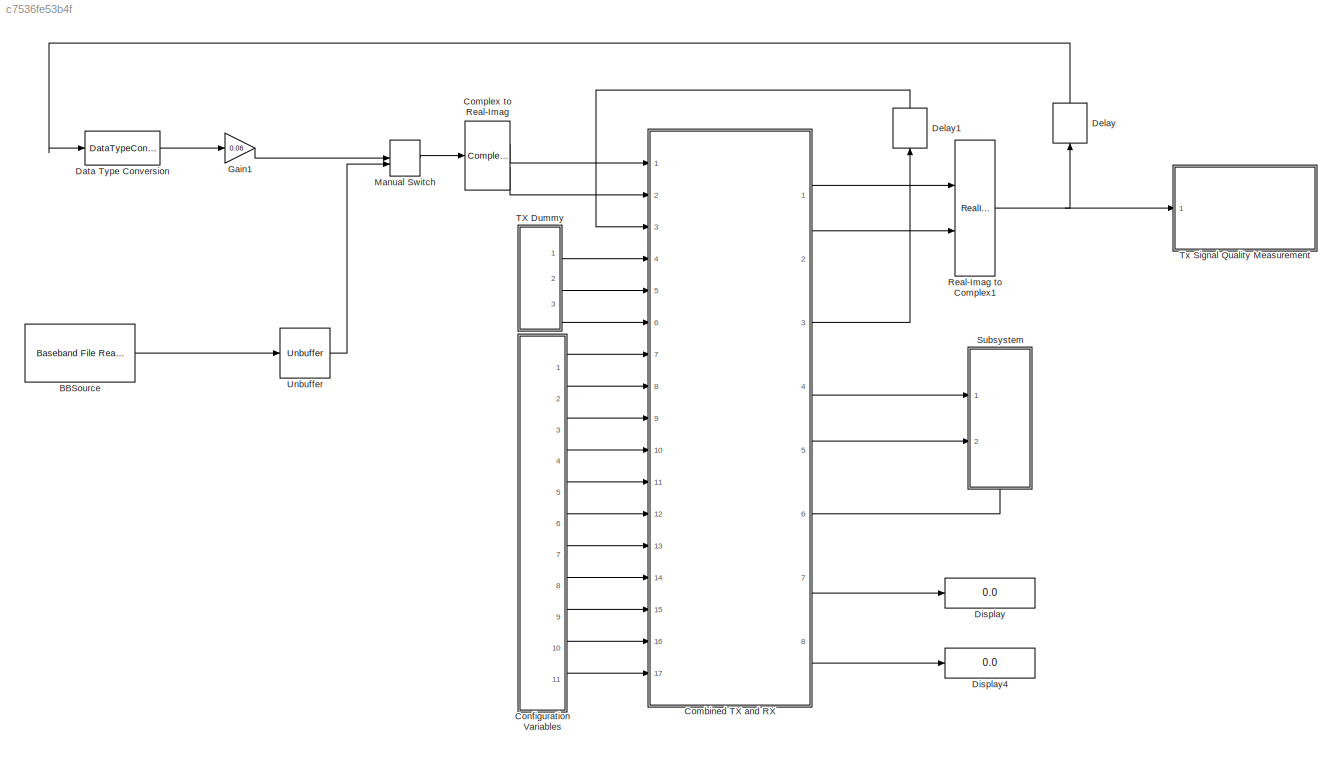
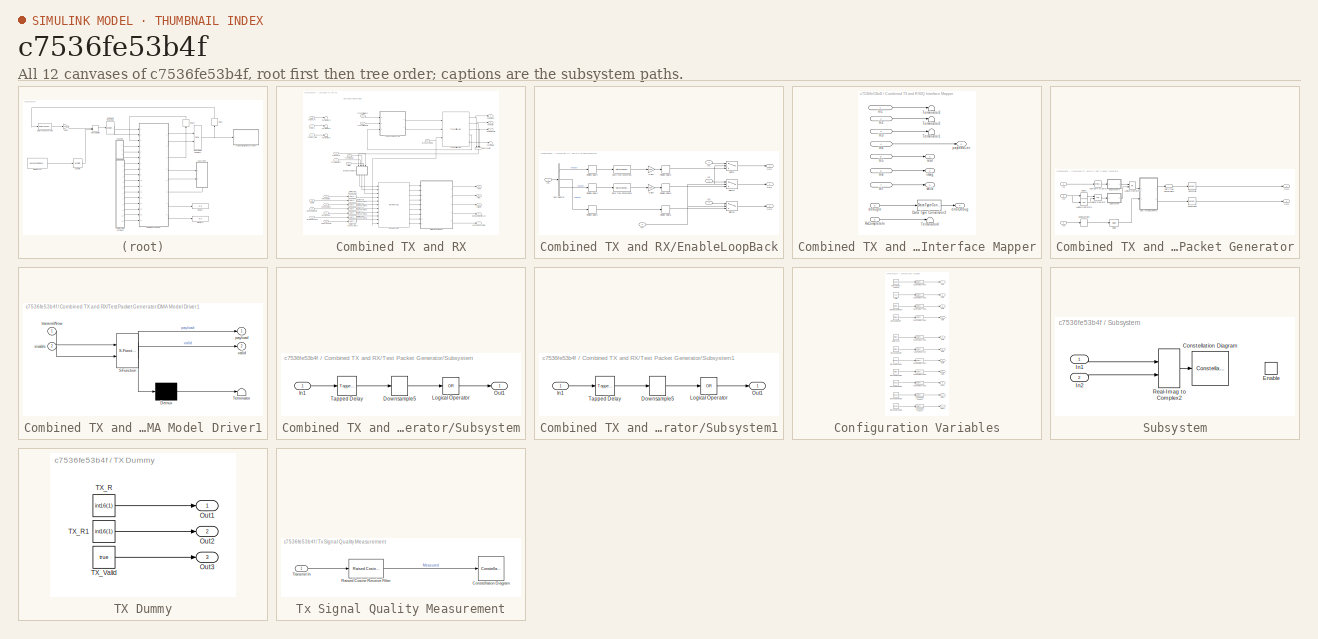
[diagram: thumbnail index - all 12 canvases of the model, root first then tree order]
MODEL slx_c7536fe53b4f
KIND model
CONFIG AbsTol = auto
CONFIG EnableMultiTasking = off
CONFIG FixedStep = auto
CONFIG InitFcn = modelSettings\n
CONFIG MaxStep = auto
CONFIG MinStep = auto
CONFIG RelTol = 1e-3
CONFIG SampleTimeConstraint = Unconstrained
CONFIG Solver = FixedStepDiscrete
CONFIG SolverName = FixedStepDiscrete
CONFIG StartTime = 0.0
CONFIG StopTime = 10.0
BLOCK [Reference] BBSource  REF=commsource2/Baseband File Reader
  Ports = [0, 1]
  SourceBlock = commsource2/Baseband File Reader
  SourceProductBaseCode = CM
  SourceProductName = Communications System Toolbox
  SourceType = Baseband File Reader
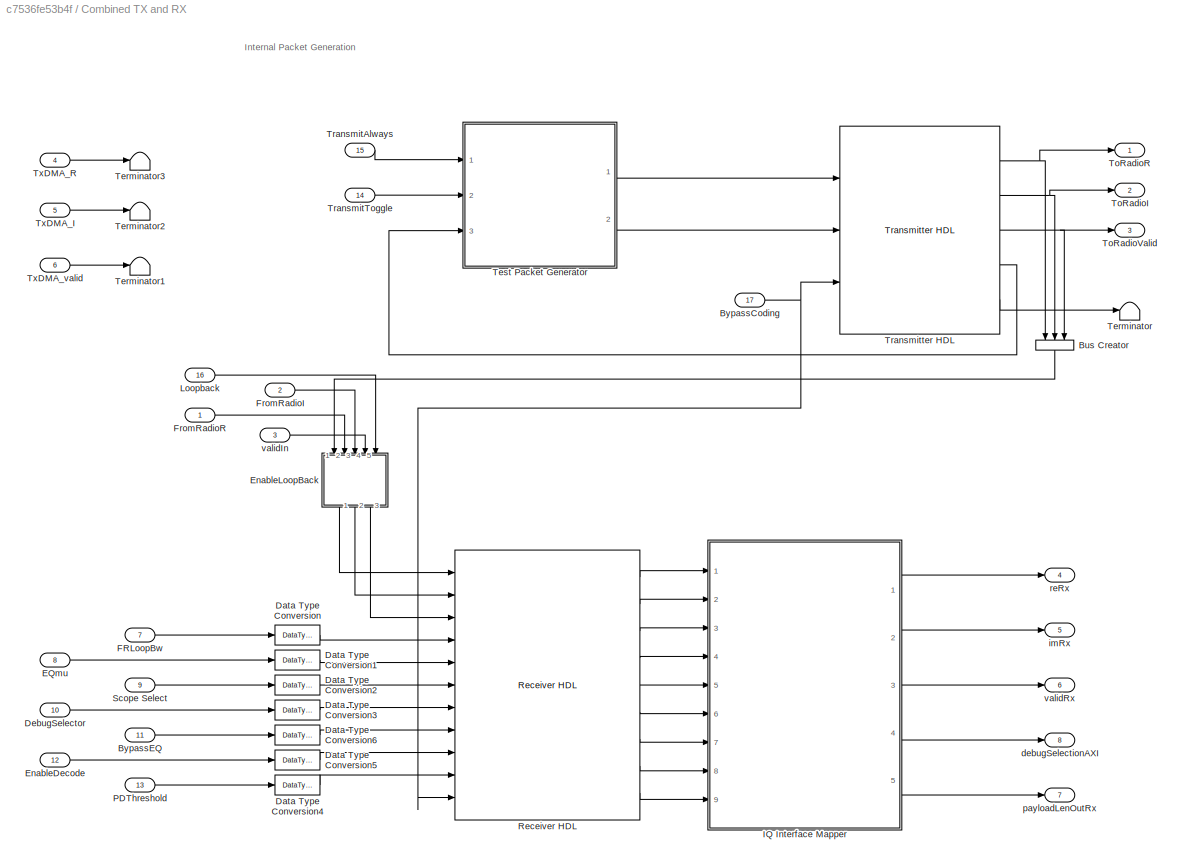
BLOCK [SubSystem] Combined TX and RX
  Ports = [17, 8]
  RequestExecContextInheritance = off
  TreatAsAtomicUnit = on
  Variant = off
BLOCK [BusCreator] Combined TX and RX/Bus Creator
  DisplayOption = bar
  InheritFromInputs = on
  Inputs = 3
  Ports = [3, 1]
BLOCK [Inport] Combined TX and RX/BypassCoding
  IconDisplay = Port number
  Port = 17
BLOCK [Inport] Combined TX and RX/BypassEQ
  IconDisplay = Port number
  Port = 11
BLOCK [DataTypeConversion] Combined TX and RX/Data Type Conversion
  OutDataTypeStr = int16
  RndMeth = Floor
  SaturateOnIntegerOverflow = off
BLOCK [DataTypeConversion] Combined TX and RX/Data Type Conversion1
  OutDataTypeStr = int16
  RndMeth = Floor
  SaturateOnIntegerOverflow = off
BLOCK [DataTypeConversion] Combined TX and RX/Data Type Conversion2
  OutDataTypeStr = int8
  RndMeth = Floor
  SaturateOnIntegerOverflow = off
BLOCK [DataTypeConversion] Combined TX and RX/Data Type Conversion3
  OutDataTypeStr = int8
  RndMeth = Floor
  SaturateOnIntegerOverflow = off
BLOCK [DataTypeConversion] Combined TX and RX/Data Type Conversion4
  OutDataTypeStr = int16
  RndMeth = Floor
  SaturateOnIntegerOverflow = off
BLOCK [DataTypeConversion] Combined TX and RX/Data Type Conversion5
  OutDataTypeStr = int8
  RndMeth = Floor
  SaturateOnIntegerOverflow = off
BLOCK [DataTypeConversion] Combined TX and RX/Data Type Conversion6
  OutDataTypeStr = int8
  RndMeth = Floor
  SaturateOnIntegerOverflow = off
BLOCK [Inport] Combined TX and RX/DebugSelector
  IconDisplay = Port number
  Port = 10
BLOCK [Inport] Combined TX and RX/EQmu
  IconDisplay = Port number
  Port = 8
BLOCK [Inport] Combined TX and RX/EnableDecode
  IconDisplay = Port number
  Port = 12
BLOCK [SubSystem] Combined TX and RX/EnableLoopBack
  Ports = [5, 3]
  RequestExecContextInheritance = off
  Variant = off
BLOCK [BusSelector] Combined TX and RX/EnableLoopBack/Bus Selector
  OutputAsBus = off
  OutputSignals = signal1,signal2,signal3
  Ports = [1, 3]
BLOCK [DataTypeConversion] Combined TX and RX/EnableLoopBack/Data Type Conversion
  ConvertRealWorld = Stored Integer (SI)
  OutDataTypeStr = int16
  RndMeth = Floor
  SaturateOnIntegerOverflow = off
BLOCK [DataTypeConversion] Combined TX and RX/EnableLoopBack/Data Type Conversion1
  ConvertRealWorld = Stored Integer (SI)
  OutDataTypeStr = int16
  RndMeth = Floor
  SaturateOnIntegerOverflow = off
BLOCK [Gain] Combined TX and RX/EnableLoopBack/Gain1
  Gain = 0.06
  OutDataTypeStr = int16
  ParamDataTypeStr = Inherit: Inherit via internal rule
BLOCK [Gain] Combined TX and RX/EnableLoopBack/Gain2
  Gain = 0.06
  OutDataTypeStr = int16
  ParamDataTypeStr = Inherit: Inherit via internal rule
BLOCK [Inport] Combined TX and RX/EnableLoopBack/In1
  IconDisplay = Port number
  Port = 2
BLOCK [Inport] Combined TX and RX/EnableLoopBack/In2
  IconDisplay = Port number
  Port = 3
BLOCK [Inport] Combined TX and RX/EnableLoopBack/In3
  IconDisplay = Port number
  Port = 4
BLOCK [Inport] Combined TX and RX/EnableLoopBack/In4
  IconDisplay = Port number
  Port = 5
BLOCK [Inport] Combined TX and RX/EnableLoopBack/In5
  IconDisplay = Port number
BLOCK [Outport] Combined TX and RX/EnableLoopBack/Out1
  IconDisplay = Port number
BLOCK [Outport] Combined TX and RX/EnableLoopBack/Out2
  IconDisplay = Port number
  Port = 2
BLOCK [Outport] Combined TX and RX/EnableLoopBack/Out3
  IconDisplay = Port number
  Port = 3
BLOCK [Delay] Combined TX and RX/EnableLoopBack/Pipeline Delay1
  DelayLength = 1
  InputPortMap = u0
  Ports = [1, 1]
BLOCK [Delay] Combined TX and RX/EnableLoopBack/Pipeline Delay2
  DelayLength = 1
  InputPortMap = u0
  Ports = [1, 1]
BLOCK [Delay] Combined TX and RX/EnableLoopBack/Pipeline Delay3
  DelayLength = 1
  InputPortMap = u0
  Ports = [1, 1]
BLOCK [Delay] Combined TX and RX/EnableLoopBack/Pipeline Delay4
  DelayLength = 1
  InputPortMap = u0
  Ports = [1, 1]
BLOCK [Delay] Combined TX and RX/EnableLoopBack/Pipeline Delay5
  DelayLength = 1
  InputPortMap = u0
  Ports = [1, 1]
BLOCK [Delay] Combined TX and RX/EnableLoopBack/Pipeline Delay6
  DelayLength = 1
  InputPortMap = u0
  Ports = [1, 1]
BLOCK [Switch] Combined TX and RX/EnableLoopBack/Switch
  Criteria = u2 > Threshold
  InputSameDT = off
  SaturateOnIntegerOverflow = off
BLOCK [Switch] Combined TX and RX/EnableLoopBack/Switch1
  Criteria = u2 > Threshold
  InputSameDT = off
  SaturateOnIntegerOverflow = off
BLOCK [Switch] Combined TX and RX/EnableLoopBack/Switch2
  Criteria = u2 > Threshold
  InputSameDT = off
  SaturateOnIntegerOverflow = off
BLOCK [Inport] Combined TX and RX/FRLoopBw
  IconDisplay = Port number
  Port = 7
BLOCK [Inport] Combined TX and RX/FromRadioI
  IconDisplay = Port number
  Port = 2
BLOCK [Inport] Combined TX and RX/FromRadioR
  IconDisplay = Port number
BLOCK [SubSystem] Combined TX and RX/IQ Interface Mapper
  Ports = [9, 5]
  RequestExecContextInheritance = off
  Variant = off
BLOCK [DataTypeConversion] Combined TX and RX/IQ Interface Mapper/Data Type Conversion3
  OutDataTypeStr = uint32
  RndMeth = Floor
  SaturateOnIntegerOverflow = off
BLOCK [Inport] Combined TX and RX/IQ Interface Mapper/In1
  IconDisplay = Port number and signal name
BLOCK [Inport] Combined TX and RX/IQ Interface Mapper/In2
  IconDisplay = Port number and signal name
  Port = 2
BLOCK [Inport] Combined TX and RX/IQ Interface Mapper/In3
  IconDisplay = Port number and signal name
  Port = 3
BLOCK [Inport] Combined TX and RX/IQ Interface Mapper/In4
  IconDisplay = Port number and signal name
  Port = 4
BLOCK [Inport] Combined TX and RX/IQ Interface Mapper/In5
  IconDisplay = Port number and signal name
  Port = 5
BLOCK [Inport] Combined TX and RX/IQ Interface Mapper/In6
  IconDisplay = Port number and signal name
  Port = 6
BLOCK [Inport] Combined TX and RX/IQ Interface Mapper/In7
  IconDisplay = Port number and signal name
  Port = 7
BLOCK [Inport] Combined TX and RX/IQ Interface Mapper/RxCompleteIn
  IconDisplay = Port number
  Port = 9
BLOCK [Terminator] Combined TX and RX/IQ Interface Mapper/Terminator1
BLOCK [Terminator] Combined TX and RX/IQ Interface Mapper/Terminator2
BLOCK [Terminator] Combined TX and RX/IQ Interface Mapper/Terminator3
BLOCK [Terminator] Combined TX and RX/IQ Interface Mapper/Terminator4
BLOCK [Inport] Combined TX and RX/IQ Interface Mapper/debugIn
  IconDisplay = Port number and signal name
  Port = 8
BLOCK [Outport] Combined TX and RX/IQ Interface Mapper/errorDebug
  IconDisplay = Port number
  Port = 4
BLOCK [Outport] Combined TX and RX/IQ Interface Mapper/imag
  IconDisplay = Port number
  Port = 2
BLOCK [Outport] Combined TX and RX/IQ Interface Mapper/payloadLen
  IconDisplay = Port number
  Port = 5
BLOCK [Outport] Combined TX and RX/IQ Interface Mapper/real
  IconDisplay = Port number
BLOCK [Outport] Combined TX and RX/IQ Interface Mapper/valid
  IconDisplay = Port number
  Port = 3
BLOCK [Inport] Combined TX and RX/Loopback
  IconDisplay = Port number
  Port = 16
BLOCK [Inport] Combined TX and RX/PDThreshold
  IconDisplay = Port number
  Port = 13
BLOCK [Reference] Combined TX and RX/Receiver HDL  REF=RxTxFixedPointLibrary_noscopes/Receiver HDL
  Ports = [11, 9]
  SourceBlock = RxTxFixedPointLibrary_noscopes/Receiver HDL
BLOCK [Inport] Combined TX and RX/Scope Select
  IconDisplay = Port number
  Port = 9
BLOCK [Terminator] Combined TX and RX/Terminator
BLOCK [Terminator] Combined TX and RX/Terminator1
BLOCK [Terminator] Combined TX and RX/Terminator2
BLOCK [Terminator] Combined TX and RX/Terminator3
BLOCK [SubSystem] Combined TX and RX/Test Packet Generator
  Ports = [3, 2]
  RequestExecContextInheritance = off
  Variant = off
BLOCK [Reference] Combined TX and RX/Test Packet Generator/Compare To Zero1  REF=simulink/Logic and Bit
Operations/Compare
To Zero
  Ports = [1, 1]
  SourceBlock = simulink/Logic and Bit\nOperations/Compare\nTo Zero
  SourceProductBaseCode = SL
  SourceProductName = Simulink
  SourceType = Compare To Zero
BLOCK [SubSystem] Combined TX and RX/Test Packet Generator/DMA Model Driver1
  ErrorFcn = Stateflow.Translate.translate
  PermitHierarchicalResolution = ExplicitOnly
  Ports = [2, 2]
  RequestExecContextInheritance = off
  SFBlockType = MATLAB Function
  TreatAsAtomicUnit = on
  Variant = off
BLOCK [Demux] Combined TX and RX/Test Packet Generator/DMA Model Driver1/ Demux 
  Outputs = 1
  Ports = [1, 1]
BLOCK [S-Function] Combined TX and RX/Test Packet Generator/DMA Model Driver1/ SFunction 
  EnableBusSupport = on
  FunctionName = sf_sfun
  PortCounts = [2 3]
  Ports = [2, 3]
  SFcnIsStateOwnerBlock = off
  SFunctionDeploymentMode = off
  Tag = Stateflow S-Function combinedTxRx_ExternalMode 2
BLOCK [Terminator] Combined TX and RX/Test Packet Generator/DMA Model Driver1/ Terminator 
BLOCK [Inport] Combined TX and RX/Test Packet Generator/DMA Model Driver1/enable
  IconDisplay = Port number
  Port = 2
BLOCK [Outport] Combined TX and RX/Test Packet Generator/DMA Model Driver1/payload
  IconDisplay = Port number
BLOCK [Inport] Combined TX and RX/Test Packet Generator/DMA Model Driver1/transmitNow
  IconDisplay = Port number
BLOCK [Outport] Combined TX and RX/Test Packet Generator/DMA Model Driver1/valid
  IconDisplay = Port number
  Port = 2
BLOCK [DataTypeConversion] Combined TX and RX/Test Packet Generator/Data Type Conversion7
  OutDataTypeStr = fixdt(0,64,0)
  RndMeth = Floor
  SaturateOnIntegerOverflow = off
BLOCK [Delay] Combined TX and RX/Test Packet Generator/Delay
  DelayLength = 1
  InputPortMap = u0
  Ports = [1, 1]
BLOCK [Delay] Combined TX and RX/Test Packet Generator/Delay1
  DelayLength = 1
  InputPortMap = u0
  Ports = [1, 1]
BLOCK [DownSample] Combined TX and RX/Test Packet Generator/Downsample1
  InputProcessing = Elements as channels (sample based)
  N = 4
  RateOptions = Allow multirate processing
BLOCK [Inport] Combined TX and RX/Test Packet Generator/In1
  IconDisplay = Port number
BLOCK [Inport] Combined TX and RX/Test Packet Generator/In2
  IconDisplay = Port number
  Port = 2
BLOCK [Inport] Combined TX and RX/Test Packet Generator/In3
  IconDisplay = Port number
  Port = 3
BLOCK [Logic] Combined TX and RX/Test Packet Generator/Logical Operator
  AllPortsSameDT = off
  OutDataTypeStr = boolean
  Ports = [2, 1]
BLOCK [Logic] Combined TX and RX/Test Packet Generator/Logical Operator1
  AllPortsSameDT = off
  Operator = NOT
  OutDataTypeStr = boolean
  Ports = [1, 1]
BLOCK [Logic] Combined TX and RX/Test Packet Generator/Logical Operator2
  AllPortsSameDT = off
  Operator = OR
  OutDataTypeStr = boolean
  Ports = [2, 1]
BLOCK [Outport] Combined TX and RX/Test Packet Generator/Out1
  IconDisplay = Port number
BLOCK [Outport] Combined TX and RX/Test Packet Generator/Out2
  IconDisplay = Port number
  Port = 2
BLOCK [SubSystem] Combined TX and RX/Test Packet Generator/Subsystem
  Ports = [1, 1]
  RequestExecContextInheritance = off
  Variant = off
BLOCK [DownSample] Combined TX and RX/Test Packet Generator/Subsystem/Downsample5
  InputProcessing = Elements as channels (sample based)
  N = 4
  RateOptions = Allow multirate processing
BLOCK [Inport] Combined TX and RX/Test Packet Generator/Subsystem/In1
  IconDisplay = Port number
BLOCK [Logic] Combined TX and RX/Test Packet Generator/Subsystem/Logical Operator
  AllPortsSameDT = off
  Inputs = 1
  Operator = OR
  OutDataTypeStr = boolean
  Ports = [1, 1]
BLOCK [Outport] Combined TX and RX/Test Packet Generator/Subsystem/Out1
  IconDisplay = Port number
BLOCK [Reference] Combined TX and RX/Test Packet Generator/Subsystem/Tapped Delay  REF=simulink/Discrete/Tapped Delay
  Ports = [1, 1]
  SourceBlock = simulink/Discrete/Tapped Delay
  SourceProductBaseCode = SL
  SourceProductName = Simulink
  SourceType = Tapped Delay Line
BLOCK [SubSystem] Combined TX and RX/Test Packet Generator/Subsystem1
  Ports = [1, 1]
  RequestExecContextInheritance = off
  Variant = off
BLOCK [DownSample] Combined TX and RX/Test Packet Generator/Subsystem1/Downsample5
  InputProcessing = Elements as channels (sample based)
  N = 4
  RateOptions = Allow multirate processing
BLOCK [Inport] Combined TX and RX/Test Packet Generator/Subsystem1/In1
  IconDisplay = Port number
BLOCK [Logic] Combined TX and RX/Test Packet Generator/Subsystem1/Logical Operator
  AllPortsSameDT = off
  Inputs = 1
  Operator = OR
  OutDataTypeStr = boolean
  Ports = [1, 1]
BLOCK [Outport] Combined TX and RX/Test Packet Generator/Subsystem1/Out1
  IconDisplay = Port number
BLOCK [Reference] Combined TX and RX/Test Packet Generator/Subsystem1/Tapped Delay  REF=simulink/Discrete/Tapped Delay
  Ports = [1, 1]
  SourceBlock = simulink/Discrete/Tapped Delay
  SourceProductBaseCode = SL
  SourceProductName = Simulink
  SourceType = Tapped Delay Line
BLOCK [Reference] Combined TX and RX/Test Packet Generator/Upsample  REF=dspsigops/Upsample
  Ports = [1, 1]
  SourceBlock = dspsigops/Upsample
  SourceProductBaseCode = DS
  SourceProductName = DSP System Toolbox
  SourceType = Upsample
  UserDataPersistent = on
BLOCK [Reference] Combined TX and RX/Test Packet Generator/Upsample1  REF=dspsigops/Upsample
  Ports = [1, 1]
  SourceBlock = dspsigops/Upsample
  SourceProductBaseCode = DS
  SourceProductName = DSP System Toolbox
  SourceType = Upsample
  UserDataPersistent = on
BLOCK [Outport] Combined TX and RX/ToRadioI
  IconDisplay = Port number
  Port = 2
BLOCK [Outport] Combined TX and RX/ToRadioR
  IconDisplay = Port number
BLOCK [Outport] Combined TX and RX/ToRadioValid
  IconDisplay = Port number
  Port = 3
BLOCK [Inport] Combined TX and RX/TransmitAlways
  IconDisplay = Port number
  Port = 15
BLOCK [Inport] Combined TX and RX/TransmitToggle
  IconDisplay = Port number
  Port = 14
BLOCK [Reference] Combined TX and RX/Transmitter HDL  REF=RxTxFixedPointLibrary_noscopes/Transmitter HDL
  Ports = [3, 5]
  SourceBlock = RxTxFixedPointLibrary_noscopes/Transmitter HDL
BLOCK [Inport] Combined TX and RX/TxDMA_I
  IconDisplay = Port number
  Port = 5
BLOCK [Inport] Combined TX and RX/TxDMA_R
  IconDisplay = Port number
  Port = 4
BLOCK [Inport] Combined TX and RX/TxDMA_valid
  IconDisplay = Port number
  Port = 6
BLOCK [Outport] Combined TX and RX/debugSelectionAXI
  IconDisplay = Port number
  Port = 8
BLOCK [Outport] Combined TX and RX/imRx
  IconDisplay = Port number
  Port = 5
BLOCK [Outport] Combined TX and RX/payloadLenOutRx
  IconDisplay = Port number
  Port = 7
BLOCK [Outport] Combined TX and RX/reRx
  IconDisplay = Port number
  Port = 4
BLOCK [Inport] Combined TX and RX/validIn
  IconDisplay = Port number
  Port = 3
BLOCK [Outport] Combined TX and RX/validRx
  IconDisplay = Port number
  Port = 6
BLOCK [ComplexToRealImag] Complex to Real-Imag
  Ports = [1, 2]
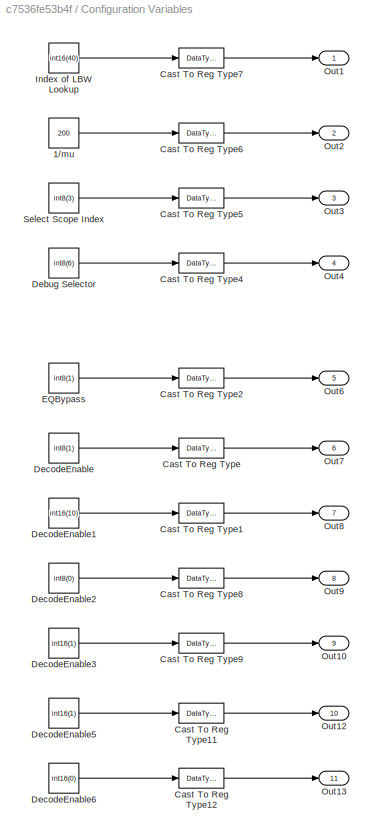
BLOCK [SubSystem] Configuration Variables
  Ports = [0, 11]
  RequestExecContextInheritance = off
  Variant = off
BLOCK [Constant] Configuration Variables/1//mu
  OutDataTypeStr = int16
  SampleTime = -1
  Value = 200
BLOCK [DataTypeConversion] Configuration Variables/Cast To Reg Type
  OutDataTypeStr = uint32
  RndMeth = Floor
  SaturateOnIntegerOverflow = off
BLOCK [DataTypeConversion] Configuration Variables/Cast To Reg Type1
  OutDataTypeStr = uint32
  RndMeth = Floor
  SaturateOnIntegerOverflow = off
BLOCK [DataTypeConversion] Configuration Variables/Cast To Reg Type11
  OutDataTypeStr = uint32
  RndMeth = Floor
  SaturateOnIntegerOverflow = off
BLOCK [DataTypeConversion] Configuration Variables/Cast To Reg Type12
  OutDataTypeStr = uint32
  RndMeth = Floor
  SaturateOnIntegerOverflow = off
BLOCK [DataTypeConversion] Configuration Variables/Cast To Reg Type2
  OutDataTypeStr = uint32
  RndMeth = Floor
  SaturateOnIntegerOverflow = off
BLOCK [DataTypeConversion] Configuration Variables/Cast To Reg Type4
  OutDataTypeStr = uint32
  RndMeth = Floor
  SaturateOnIntegerOverflow = off
BLOCK [DataTypeConversion] Configuration Variables/Cast To Reg Type5
  OutDataTypeStr = uint32
  RndMeth = Floor
  SaturateOnIntegerOverflow = off
BLOCK [DataTypeConversion] Configuration Variables/Cast To Reg Type6
  OutDataTypeStr = uint32
  RndMeth = Floor
  SaturateOnIntegerOverflow = off
BLOCK [DataTypeConversion] Configuration Variables/Cast To Reg Type7
  OutDataTypeStr = uint32
  RndMeth = Floor
  SaturateOnIntegerOverflow = off
BLOCK [DataTypeConversion] Configuration Variables/Cast To Reg Type8
  OutDataTypeStr = uint32
  RndMeth = Floor
  SaturateOnIntegerOverflow = off
BLOCK [DataTypeConversion] Configuration Variables/Cast To Reg Type9
  OutDataTypeStr = uint32
  RndMeth = Floor
  SaturateOnIntegerOverflow = off
BLOCK [Constant] Configuration Variables/Debug Selector
  SampleTime = 1/RadioSampleRate
  Value = int8(6)
BLOCK [Constant] Configuration Variables/DecodeEnable
  SampleTime = 1/RadioSampleRate
  Value = int8(1)
BLOCK [Constant] Configuration Variables/DecodeEnable1
  SampleTime = 1/RadioSampleRate
  Value = int16(10)
BLOCK [Constant] Configuration Variables/DecodeEnable2
  SampleTime = 1/RadioSampleRate
  Value = int8(0)
BLOCK [Constant] Configuration Variables/DecodeEnable3
  SampleTime = 1/RadioSampleRate
  Value = int16(1)
BLOCK [Constant] Configuration Variables/DecodeEnable5
  SampleTime = 1/RadioSampleRate
  Value = int16(1)
BLOCK [Constant] Configuration Variables/DecodeEnable6
  SampleTime = 1/RadioSampleRate
  Value = int16(0)
BLOCK [Constant] Configuration Variables/EQBypass
  SampleTime = 1/RadioSampleRate
  Value = int8(1)
BLOCK [Constant] Configuration Variables/Index of LBW Lookup
  SampleTime = 1/RadioSampleRate
  Value = int16(40)
BLOCK [Outport] Configuration Variables/Out1
  IconDisplay = Port number
BLOCK [Outport] Configuration Variables/Out10
  IconDisplay = Port number
  Port = 9
BLOCK [Outport] Configuration Variables/Out12
  IconDisplay = Port number
  Port = 10
BLOCK [Outport] Configuration Variables/Out13
  IconDisplay = Port number
  Port = 11
BLOCK [Outport] Configuration Variables/Out2
  IconDisplay = Port number
  Port = 2
BLOCK [Outport] Configuration Variables/Out3
  IconDisplay = Port number
  Port = 3
BLOCK [Outport] Configuration Variables/Out4
  IconDisplay = Port number
  Port = 4
BLOCK [Outport] Configuration Variables/Out6
  IconDisplay = Port number
  Port = 5
BLOCK [Outport] Configuration Variables/Out7
  IconDisplay = Port number
  Port = 6
BLOCK [Outport] Configuration Variables/Out8
  IconDisplay = Port number
  Port = 7
BLOCK [Outport] Configuration Variables/Out9
  IconDisplay = Port number
  Port = 8
BLOCK [Constant] Configuration Variables/Select Scope Index
  SampleTime = 1/RadioSampleRate
  Value = int8(3)
BLOCK [DataTypeConversion] Data Type Conversion
  ConvertRealWorld = Stored Integer (SI)
  OutDataTypeStr = int16
  RndMeth = Floor
  SaturateOnIntegerOverflow = off
BLOCK [Delay] Delay
  DelayLength = 1
  InputPortMap = u0
  Ports = [1, 1]
BLOCK [Delay] Delay1
  DelayLength = 1
  InputPortMap = u0
  Ports = [1, 1]
BLOCK [Display] Display
  Decimation = 1
  Ports = [1]
BLOCK [Display] Display4
  Decimation = 1
  Ports = [1]
BLOCK [Gain] Gain1
  Gain = 0.06
  OutDataTypeStr = int16
  ParamDataTypeStr = Inherit: Inherit via internal rule
  SaturateOnIntegerOverflow = off
BLOCK [ManualSwitch] Manual Switch
BLOCK [RealImagToComplex] Real-Imag to Complex1
  Ports = [2, 1]
BLOCK [SubSystem] Subsystem
  Ports = [2, 0, 1]
  RequestExecContextInheritance = off
  Variant = off
BLOCK [ConstellationDiagram] Subsystem/Constellation Diagram
  Ports = [1]
  ScopeSpecificationString = comm.scopes.ConstellationDiagramBlockCfg('CurrentConfiguration', extmgr.ConfigurationSet(extmgr.Configuration('Core','General UI',true),extmgr.Configuration('Core','Source UI',true),extmgr.Configuration('Sources','WiredSimulink',true),extmgr.Configuration('Sources','SimulinkEvent',false),extmgr.Configuration('Sources','Simulink',false),extmgr.Configuration('Sources','SPTool',false),extmgr.Configur...<+2464ch>
BLOCK [EnablePort] Subsystem/Enable
  Ports = []
BLOCK [Inport] Subsystem/In1
  IconDisplay = Port number
BLOCK [Inport] Subsystem/In2
  IconDisplay = Port number
  Port = 2
BLOCK [RealImagToComplex] Subsystem/Real-Imag to Complex2
  Ports = [2, 1]
BLOCK [SubSystem] TX Dummy
  Ports = [0, 3]
  RequestExecContextInheritance = off
  Variant = off
BLOCK [Outport] TX Dummy/Out1
  IconDisplay = Port number
BLOCK [Outport] TX Dummy/Out2
  IconDisplay = Port number
  Port = 2
BLOCK [Outport] TX Dummy/Out3
  IconDisplay = Port number
  Port = 3
BLOCK [Constant] TX Dummy/TX_R
  SampleTime = 1/RadioSampleRate
  Value = int16(1)
BLOCK [Constant] TX Dummy/TX_R1
  SampleTime = 1/RadioSampleRate
  Value = int16(1)
BLOCK [Constant] TX Dummy/TX_Valid
  SampleTime = 1/RadioSampleRate
  Value = true
BLOCK [SubSystem] Tx Signal Quality Measurement
  Ports = [1]
  RequestExecContextInheritance = off
  Variant = off
BLOCK [ConstellationDiagram] Tx Signal Quality Measurement/Constellation Diagram
  Ports = [1]
  ScopeSpecificationString = comm.scopes.ConstellationDiagramBlockCfg('CurrentConfiguration', extmgr.ConfigurationSet(extmgr.Configuration('Core','General UI',true),extmgr.Configuration('Core','Source UI',true),extmgr.Configuration('Sources','WiredSimulink',true),extmgr.Configuration('Sources','Workspace',false),extmgr.Configuration('Sources','Streaming',false),extmgr.Configuration('Sources','File',false),extmgr.Configuration...<+2726ch>
BLOCK [Reference] Tx Signal Quality Measurement/Raised Cosine Receive Filter  REF=commfilt2/Raised Cosine
Receive Filter
  Ports = [1, 1]
  SourceBlock = commfilt2/Raised Cosine\nReceive Filter
  SourceProductBaseCode = CM
  SourceProductName = Communications System Toolbox
  SourceType = Raised Cosine Receive Filter
  UserDataPersistent = on
BLOCK [Inport] Tx Signal Quality Measurement/Transmit In
  IconDisplay = Port number
BLOCK [Unbuffer] Unbuffer
  Ports = [1, 1]
ANNOTATION Combined TX and RX: Internal Packet Generation
LINE BBSource:1 -> Unbuffer:1
LINE Combined TX and RX/Bus Creator:1 -> Combined TX and RX/EnableLoopBack:1
NET Combined TX and RX/BypassCoding:1 -> Combined TX and RX/Receiver HDL:11, Combined TX and RX/Transmitter HDL:3
LINE Combined TX and RX/BypassEQ:1 -> Combined TX and RX/Data Type Conversion6:1
LINE Combined TX and RX/Data Type Conversion1:1 -> Combined TX and RX/Receiver HDL:5
LINE Combined TX and RX/Data Type Conversion2:1 -> Combined TX and RX/Receiver HDL:6
LINE Combined TX and RX/Data Type Conversion3:1 -> Combined TX and RX/Receiver HDL:7
LINE Combined TX and RX/Data Type Conversion4:1 -> Combined TX and RX/Receiver HDL:10
LINE Combined TX and RX/Data Type Conversion5:1 -> Combined TX and RX/Receiver HDL:9
LINE Combined TX and RX/Data Type Conversion6:1 -> Combined TX and RX/Receiver HDL:8
LINE Combined TX and RX/Data Type Conversion:1 -> Combined TX and RX/Receiver HDL:4
LINE Combined TX and RX/DebugSelector:1 -> Combined TX and RX/Data Type Conversion3:1
LINE Combined TX and RX/EQmu:1 -> Combined TX and RX/Data Type Conversion1:1
LINE Combined TX and RX/EnableDecode:1 -> Combined TX and RX/Data Type Conversion5:1
LINE Combined TX and RX/EnableLoopBack/Bus Selector:1 -> Combined TX and RX/EnableLoopBack/Pipeline Delay4:1
LINE Combined TX and RX/EnableLoopBack/Bus Selector:2 -> Combined TX and RX/EnableLoopBack/Pipeline Delay1:1
LINE Combined TX and RX/EnableLoopBack/Bus Selector:3 -> Combined TX and RX/EnableLoopBack/Pipeline Delay2:1
LINE Combined TX and RX/EnableLoopBack/Data Type Conversion1:1 -> Combined TX and RX/EnableLoopBack/Gain2:1
LINE Combined TX and RX/EnableLoopBack/Data Type Conversion:1 -> Combined TX and RX/EnableLoopBack/Gain1:1
LINE Combined TX and RX/EnableLoopBack/Gain1:1 -> Combined TX and RX/EnableLoopBack/Pipeline Delay3:1
LINE Combined TX and RX/EnableLoopBack/Gain2:1 -> Combined TX and RX/EnableLoopBack/Pipeline Delay5:1
LINE Combined TX and RX/EnableLoopBack/In1:1 -> Combined TX and RX/EnableLoopBack/Switch:1
LINE Combined TX and RX/EnableLoopBack/In2:1 -> Combined TX and RX/EnableLoopBack/Switch1:1
LINE Combined TX and RX/EnableLoopBack/In3:1 -> Combined TX and RX/EnableLoopBack/Switch2:1
NET Combined TX and RX/EnableLoopBack/In4:1 -> Combined TX and RX/EnableLoopBack/Switch1:2, Combined TX and RX/EnableLoopBack/Switch2:2, Combined TX and RX/EnableLoopBack/Switch:2
LINE Combined TX and RX/EnableLoopBack/In5:1 -> Combined TX and RX/EnableLoopBack/Bus Selector:1
LINE Combined TX and RX/EnableLoopBack/Pipeline Delay1:1 -> Combined TX and RX/EnableLoopBack/Data Type Conversion1:1
LINE Combined TX and RX/EnableLoopBack/Pipeline Delay2:1 -> Combined TX and RX/EnableLoopBack/Pipeline Delay6:1
LINE Combined TX and RX/EnableLoopBack/Pipeline Delay3:1 -> Combined TX and RX/EnableLoopBack/Switch:3
LINE Combined TX and RX/EnableLoopBack/Pipeline Delay4:1 -> Combined TX and RX/EnableLoopBack/Data Type Conversion:1
LINE Combined TX and RX/EnableLoopBack/Pipeline Delay5:1 -> Combined TX and RX/EnableLoopBack/Switch1:3
LINE Combined TX and RX/EnableLoopBack/Pipeline Delay6:1 -> Combined TX and RX/EnableLoopBack/Switch2:3
LINE Combined TX and RX/EnableLoopBack/Switch1:1 -> Combined TX and RX/EnableLoopBack/Out2:1
LINE Combined TX and RX/EnableLoopBack/Switch2:1 -> Combined TX and RX/EnableLoopBack/Out3:1
LINE Combined TX and RX/EnableLoopBack/Switch:1 -> Combined TX and RX/EnableLoopBack/Out1:1
LINE Combined TX and RX/EnableLoopBack:1 -> Combined TX and RX/Receiver HDL:1
LINE Combined TX and RX/EnableLoopBack:2 -> Combined TX and RX/Receiver HDL:2
LINE Combined TX and RX/EnableLoopBack:3 -> Combined TX and RX/Receiver HDL:3
LINE Combined TX and RX/FRLoopBw:1 -> Combined TX and RX/Data Type Conversion:1
LINE Combined TX and RX/FromRadioI:1 -> Combined TX and RX/EnableLoopBack:3
LINE Combined TX and RX/FromRadioR:1 -> Combined TX and RX/EnableLoopBack:2
LINE Combined TX and RX/IQ Interface Mapper/Data Type Conversion3:1 -> Combined TX and RX/IQ Interface Mapper/errorDebug:1
LINE Combined TX and RX/IQ Interface Mapper/In1:1 -> Combined TX and RX/IQ Interface Mapper/Terminator3:1
LINE Combined TX and RX/IQ Interface Mapper/In2:1 -> Combined TX and RX/IQ Interface Mapper/Terminator2:1
LINE Combined TX and RX/IQ Interface Mapper/In3:1 -> Combined TX and RX/IQ Interface Mapper/Terminator1:1
LINE Combined TX and RX/IQ Interface Mapper/In4:1 -> Combined TX and RX/IQ Interface Mapper/payloadLen:1
LINE Combined TX and RX/IQ Interface Mapper/In5:1 -> Combined TX and RX/IQ Interface Mapper/real:1
LINE Combined TX and RX/IQ Interface Mapper/In6:1 -> Combined TX and RX/IQ Interface Mapper/imag:1
LINE Combined TX and RX/IQ Interface Mapper/In7:1 -> Combined TX and RX/IQ Interface Mapper/valid:1
LINE Combined TX and RX/IQ Interface Mapper/RxCompleteIn:1 -> Combined TX and RX/IQ Interface Mapper/Terminator4:1
LINE Combined TX and RX/IQ Interface Mapper/debugIn:1 -> Combined TX and RX/IQ Interface Mapper/Data Type Conversion3:1
LINE Combined TX and RX/IQ Interface Mapper:1 -> Combined TX and RX/reRx:1
LINE Combined TX and RX/IQ Interface Mapper:2 -> Combined TX and RX/imRx:1
LINE Combined TX and RX/IQ Interface Mapper:3 -> Combined TX and RX/validRx:1
LINE Combined TX and RX/IQ Interface Mapper:4 -> Combined TX and RX/debugSelectionAXI:1
LINE Combined TX and RX/IQ Interface Mapper:5 -> Combined TX and RX/payloadLenOutRx:1
LINE Combined TX and RX/Loopback:1 -> Combined TX and RX/EnableLoopBack:5
LINE Combined TX and RX/PDThreshold:1 -> Combined TX and RX/Data Type Conversion4:1
LINE Combined TX and RX/Receiver HDL:1 -> Combined TX and RX/IQ Interface Mapper:1
LINE Combined TX and RX/Receiver HDL:2 -> Combined TX and RX/IQ Interface Mapper:2
LINE Combined TX and RX/Receiver HDL:3 -> Combined TX and RX/IQ Interface Mapper:3
LINE Combined TX and RX/Receiver HDL:4 -> Combined TX and RX/IQ Interface Mapper:4
LINE Combined TX and RX/Receiver HDL:5 -> Combined TX and RX/IQ Interface Mapper:5
LINE Combined TX and RX/Receiver HDL:6 -> Combined TX and RX/IQ Interface Mapper:6
LINE Combined TX and RX/Receiver HDL:7 -> Combined TX and RX/IQ Interface Mapper:7
LINE Combined TX and RX/Receiver HDL:8 -> Combined TX and RX/IQ Interface Mapper:8
LINE Combined TX and RX/Receiver HDL:9 -> Combined TX and RX/IQ Interface Mapper:9
LINE Combined TX and RX/Scope Select:1 -> Combined TX and RX/Data Type Conversion2:1
LINE Combined TX and RX/Test Packet Generator/Compare To Zero1:1 -> Combined TX and RX/Test Packet Generator/Subsystem1:1
LINE Combined TX and RX/Test Packet Generator/DMA Model Driver1:1 -> Combined TX and RX/Test Packet Generator/Data Type Conversion7:1
LINE Combined TX and RX/Test Packet Generator/DMA Model Driver1:2 -> Combined TX and RX/Test Packet Generator/Upsample1:1
LINE Combined TX and RX/Test Packet Generator/Data Type Conversion7:1 -> Combined TX and RX/Test Packet Generator/Upsample:1
LINE Combined TX and RX/Test Packet Generator/Delay1:1 -> Combined TX and RX/Test Packet Generator/Logical Operator:1
LINE Combined TX and RX/Test Packet Generator/Delay:1 -> Combined TX and RX/Test Packet Generator/DMA Model Driver1:2
LINE Combined TX and RX/Test Packet Generator/Downsample1:1 -> Combined TX and RX/Test Packet Generator/Delay:1
LINE Combined TX and RX/Test Packet Generator/In1:1 -> Combined TX and RX/Test Packet Generator/Compare To Zero1:1
NET Combined TX and RX/Test Packet Generator/In2:1 -> Combined TX and RX/Test Packet Generator/Delay1:1, Combined TX and RX/Test Packet Generator/Logical Operator1:1
LINE Combined TX and RX/Test Packet Generator/In3:1 -> Combined TX and RX/Test Packet Generator/Downsample1:1
LINE Combined TX and RX/Test Packet Generator/Logical Operator1:1 -> Combined TX and RX/Test Packet Generator/Logical Operator:2
LINE Combined TX and RX/Test Packet Generator/Logical Operator2:1 -> Combined TX and RX/Test Packet Generator/DMA Model Driver1:1
LINE Combined TX and RX/Test Packet Generator/Logical Operator:1 -> Combined TX and RX/Test Packet Generator/Subsystem:1
LINE Combined TX and RX/Test Packet Generator/Subsystem/Downsample5:1 -> Combined TX and RX/Test Packet Generator/Subsystem/Logical Operator:1
LINE Combined TX and RX/Test Packet Generator/Subsystem/In1:1 -> Combined TX and RX/Test Packet Generator/Subsystem/Tapped Delay:1
LINE Combined TX and RX/Test Packet Generator/Subsystem/Logical Operator:1 -> Combined TX and RX/Test Packet Generator/Subsystem/Out1:1
LINE Combined TX and RX/Test Packet Generator/Subsystem/Tapped Delay:1 -> Combined TX and RX/Test Packet Generator/Subsystem/Downsample5:1
LINE Combined TX and RX/Test Packet Generator/Subsystem1/Downsample5:1 -> Combined TX and RX/Test Packet Generator/Subsystem1/Logical Operator:1
LINE Combined TX and RX/Test Packet Generator/Subsystem1/In1:1 -> Combined TX and RX/Test Packet Generator/Subsystem1/Tapped Delay:1
LINE Combined TX and RX/Test Packet Generator/Subsystem1/Logical Operator:1 -> Combined TX and RX/Test Packet Generator/Subsystem1/Out1:1
LINE Combined TX and RX/Test Packet Generator/Subsystem1/Tapped Delay:1 -> Combined TX and RX/Test Packet Generator/Subsystem1/Downsample5:1
LINE Combined TX and RX/Test Packet Generator/Subsystem1:1 -> Combined TX and RX/Test Packet Generator/Logical Operator2:1
LINE Combined TX and RX/Test Packet Generator/Subsystem:1 -> Combined TX and RX/Test Packet Generator/Logical Operator2:2
LINE Combined TX and RX/Test Packet Generator/Upsample1:1 -> Combined TX and RX/Test Packet Generator/Out2:1
LINE Combined TX and RX/Test Packet Generator/Upsample:1 -> Combined TX and RX/Test Packet Generator/Out1:1
LINE Combined TX and RX/Test Packet Generator:1 -> Combined TX and RX/Transmitter HDL:1
LINE Combined TX and RX/Test Packet Generator:2 -> Combined TX and RX/Transmitter HDL:2
LINE Combined TX and RX/TransmitAlways:1 -> Combined TX and RX/Test Packet Generator:1
LINE Combined TX and RX/TransmitToggle:1 -> Combined TX and RX/Test Packet Generator:2
NET Combined TX and RX/Transmitter HDL:1 -> Combined TX and RX/Bus Creator:1, Combined TX and RX/ToRadioR:1
NET Combined TX and RX/Transmitter HDL:2 -> Combined TX and RX/Bus Creator:2, Combined TX and RX/ToRadioI:1
NET Combined TX and RX/Transmitter HDL:3 -> Combined TX and RX/Bus Creator:3, Combined TX and RX/ToRadioValid:1
LINE Combined TX and RX/Transmitter HDL:4 -> Combined TX and RX/Test Packet Generator:3
LINE Combined TX and RX/Transmitter HDL:5 -> Combined TX and RX/Terminator:1
LINE Combined TX and RX/TxDMA_I:1 -> Combined TX and RX/Terminator2:1
LINE Combined TX and RX/TxDMA_R:1 -> Combined TX and RX/Terminator3:1
LINE Combined TX and RX/TxDMA_valid:1 -> Combined TX and RX/Terminator1:1
LINE Combined TX and RX/validIn:1 -> Combined TX and RX/EnableLoopBack:4
LINE Combined TX and RX:1 -> Real-Imag to Complex1:1
LINE Combined TX and RX:2 -> Real-Imag to Complex1:2
LINE Combined TX and RX:3 -> Delay1:1
LINE Combined TX and RX:4 -> Subsystem:1
LINE Combined TX and RX:5 -> Subsystem:2
LINE Combined TX and RX:6 -> Subsystem:enable
LINE Combined TX and RX:7 -> Display:1
LINE Combined TX and RX:8 -> Display4:1
LINE Complex to Real-Imag:1 -> Combined TX and RX:1
LINE Complex to Real-Imag:2 -> Combined TX and RX:2
LINE Configuration Variables/1//mu:1 -> Configuration Variables/Cast To Reg Type6:1
LINE Configuration Variables/Cast To Reg Type11:1 -> Configuration Variables/Out12:1
LINE Configuration Variables/Cast To Reg Type12:1 -> Configuration Variables/Out13:1
LINE Configuration Variables/Cast To Reg Type1:1 -> Configuration Variables/Out8:1
LINE Configuration Variables/Cast To Reg Type2:1 -> Configuration Variables/Out6:1
LINE Configuration Variables/Cast To Reg Type4:1 -> Configuration Variables/Out4:1
LINE Configuration Variables/Cast To Reg Type5:1 -> Configuration Variables/Out3:1
LINE Configuration Variables/Cast To Reg Type6:1 -> Configuration Variables/Out2:1
LINE Configuration Variables/Cast To Reg Type7:1 -> Configuration Variables/Out1:1
LINE Configuration Variables/Cast To Reg Type8:1 -> Configuration Variables/Out9:1
LINE Configuration Variables/Cast To Reg Type9:1 -> Configuration Variables/Out10:1
LINE Configuration Variables/Cast To Reg Type:1 -> Configuration Variables/Out7:1
LINE Configuration Variables/Debug Selector:1 -> Configuration Variables/Cast To Reg Type4:1
LINE Configuration Variables/DecodeEnable1:1 -> Configuration Variables/Cast To Reg Type1:1
LINE Configuration Variables/DecodeEnable2:1 -> Configuration Variables/Cast To Reg Type8:1
LINE Configuration Variables/DecodeEnable3:1 -> Configuration Variables/Cast To Reg Type9:1
LINE Configuration Variables/DecodeEnable5:1 -> Configuration Variables/Cast To Reg Type11:1
LINE Configuration Variables/DecodeEnable6:1 -> Configuration Variables/Cast To Reg Type12:1
LINE Configuration Variables/DecodeEnable:1 -> Configuration Variables/Cast To Reg Type:1
LINE Configuration Variables/EQBypass:1 -> Configuration Variables/Cast To Reg Type2:1
LINE Configuration Variables/Index of LBW Lookup:1 -> Configuration Variables/Cast To Reg Type7:1
LINE Configuration Variables/Select Scope Index:1 -> Configuration Variables/Cast To Reg Type5:1
LINE Configuration Variables:1 -> Combined TX and RX:7
LINE Configuration Variables:10 -> Combined TX and RX:16
LINE Configuration Variables:11 -> Combined TX and RX:17
LINE Configuration Variables:2 -> Combined TX and RX:8
LINE Configuration Variables:3 -> Combined TX and RX:9
LINE Configuration Variables:4 -> Combined TX and RX:10
LINE Configuration Variables:5 -> Combined TX and RX:11
LINE Configuration Variables:6 -> Combined TX and RX:12
LINE Configuration Variables:7 -> Combined TX and RX:13
LINE Configuration Variables:8 -> Combined TX and RX:14
LINE Configuration Variables:9 -> Combined TX and RX:15
LINE Data Type Conversion:1 -> Gain1:1
LINE Delay1:1 -> Combined TX and RX:3
LINE Delay:1 -> Data Type Conversion:1
LINE Gain1:1 -> Manual Switch:1
LINE Manual Switch:1 -> Complex to Real-Imag:1
NET Real-Imag to Complex1:1 -> Delay:1, Tx Signal Quality Measurement:1
LINE Subsystem/In1:1 -> Subsystem/Real-Imag to Complex2:1
LINE Subsystem/In2:1 -> Subsystem/Real-Imag to Complex2:2
LINE Subsystem/Real-Imag to Complex2:1 -> Subsystem/Constellation Diagram:1
LINE TX Dummy/TX_R1:1 -> TX Dummy/Out2:1
LINE TX Dummy/TX_R:1 -> TX Dummy/Out1:1
LINE TX Dummy/TX_Valid:1 -> TX Dummy/Out3:1
LINE TX Dummy:1 -> Combined TX and RX:4
LINE TX Dummy:2 -> Combined TX and RX:5
LINE TX Dummy:3 -> Combined TX and RX:6
LINE Tx Signal Quality Measurement/Raised Cosine Receive Filter:1 -> Tx Signal Quality Measurement/Constellation Diagram:1
LINE Tx Signal Quality Measurement/Transmit In:1 -> Tx Signal Quality Measurement/Raised Cosine Receive Filter:1
LINE Unbuffer:1 -> Manual Switch:2
note: NET lines group one-source signal fan-out (src -> all destinations, sorted); 1:1 wires keep LINE
CHART Combined TX and RX/Test Packet Generator/DMA Model
Driver1 states=1 transitions=1
  STATE_LABEL 'eML_blk_kernel()'
  STATE_LABEL "SCRIPT:\nfunction [payload,valid] = fcn(transmitNow, enable)\n%#codegen\n\npersistent indx mode pSize counter msg payloadIndx transmitNext\n\nif isempty(indx)\n    msg = fi(int8('Hello World 0'),0,64,0);\n    pSize = fi(length('Hello World 0')*8,0,64,0); % Size in bytes (Must be multiple of 32 bits) cannot exceed uint16 max\n    indx = pSize;\n    mode = int8(0);\n    counter = fi(0,0,64,0);\n    payloadIndx ...<+1455ch>"
